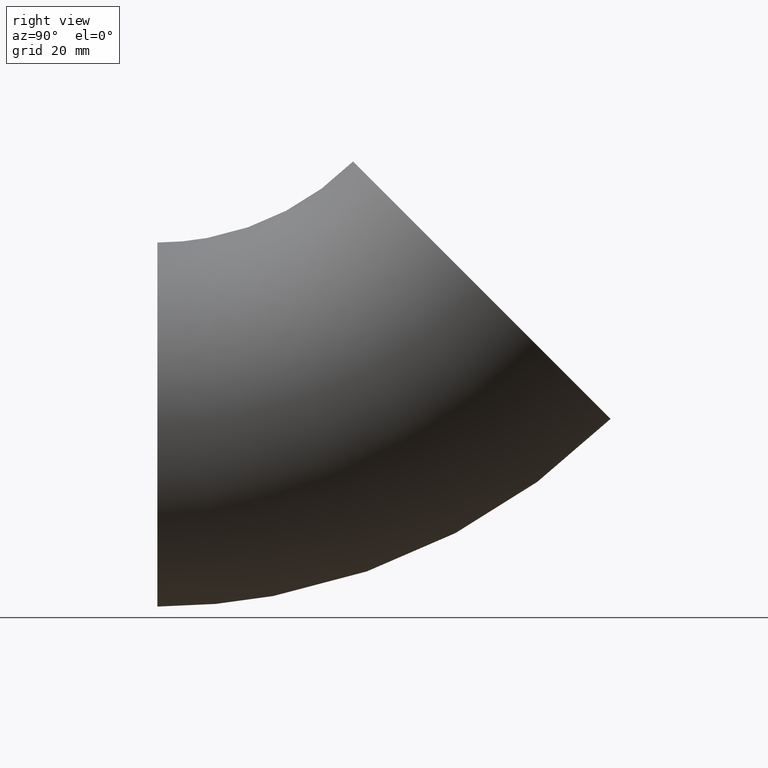
[diagram: clean part render]
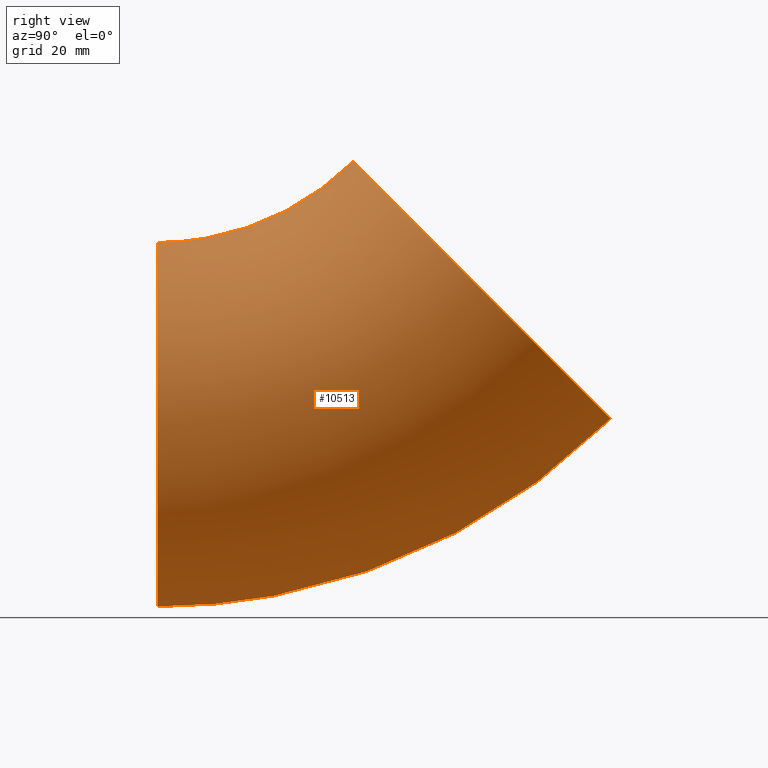
[diagram: same view with one face highlighted and labeled with its STEP entity id]
A machine part, right view. The second image highlights one B-rep face of the part: STEP entity #10513.
In plain terms, the highlighted toroidal blend (fillet) surface has major radius 76 mm and minor (blend) radius 30.15 mm.
Its self-contained STEP definition (entity closure, byte-faithful):
#877 = DIRECTION ( 'NONE',  ( 0.000000000000000000, 1.000000000000000000, 0.000000000000000000 ) ) ;
#897 = DIRECTION ( 'NONE',  ( 0.000000000000000000, -0.7071067811865476838, 0.7071067811865473507 ) ) ;
#956 = CARTESIAN_POINT ( 'NONE',  ( 0.000000000000000000, 0.000000000000000000, 0.000000000000000000 ) ) ;
#999 = DIRECTION ( 'NONE',  ( 0.000000000000000000, 0.000000000000000000, 1.000000000000000000 ) ) ;
#1289 = AXIS2_PLACEMENT_3D ( 'NONE', #1745, #3718, #897 ) ;
#1631 = CIRCLE ( 'NONE', #3678, 30.14999999999999503 ) ;
#1745 = CARTESIAN_POINT ( 'NONE',  ( 0.000000000000000000, 53.74011537017761952, -53.74011537017759821 ) ) ;
#1880 = CARTESIAN_POINT ( 'NONE',  ( 0.000000000000000000, 32.42084591740321287, -32.42084591740319155 ) ) ;
#2096 = ORIENTED_EDGE ( 'NONE', *, *, #3770, .F. ) ;
#2826 = DIRECTION ( 'NONE',  ( -1.000000000000000000, -0.000000000000000000, -0.000000000000000000 ) ) ;
#3275 = ORIENTED_EDGE ( 'NONE', *, *, #5905, .T. ) ;
#3602 = VERTEX_POINT ( 'NONE', #11074 ) ;
#3678 = AXIS2_PLACEMENT_3D ( 'NONE', #9133, #877, #9930 ) ;
#3718 = DIRECTION ( 'NONE',  ( 0.000000000000000000, 0.7071067811865473507, 0.7071067811865476838 ) ) ;
#3770 = EDGE_CURVE ( 'NONE', #7356, #7356, #11876, .T. ) ;
#4390 = EDGE_LOOP ( 'NONE', ( #3275 ) ) ;
#5261 = EDGE_LOOP ( 'NONE', ( #2096 ) ) ;
#5905 = EDGE_CURVE ( 'NONE', #3602, #3602, #1631, .T. ) ;
#7356 = VERTEX_POINT ( 'NONE', #1880 ) ;
#7672 = TOROIDAL_SURFACE ( 'NONE', #11312, 76.00000000000000000, 30.14999999999999858 ) ;
#9133 = CARTESIAN_POINT ( 'NONE',  ( 0.000000000000000000, 0.000000000000000000, -76.00000000000000000 ) ) ;
#9930 = DIRECTION ( 'NONE',  ( 0.000000000000000000, 0.000000000000000000, 1.000000000000000000 ) ) ;
#10095 = FACE_OUTER_BOUND ( 'NONE', #5261, .T. ) ;
#10513 = ADVANCED_FACE ( 'NONE', ( #10095, #11370 ), #7672, .T. ) ;
#11074 = CARTESIAN_POINT ( 'NONE',  ( 0.000000000000000000, 0.000000000000000000, -45.85000000000000142 ) ) ;
#11312 = AXIS2_PLACEMENT_3D ( 'NONE', #956, #2826, #999 ) ;
#11370 = FACE_OUTER_BOUND ( 'NONE', #4390, .T. ) ;
#11876 = CIRCLE ( 'NONE', #1289, 30.14999999999999858 ) ;